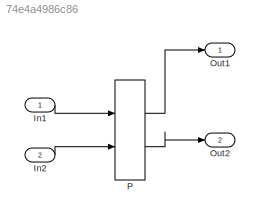
MODEL slx_74e4a4986c86
KIND model
CONFIG AbsTol = auto
CONFIG EnableMultiTasking = off
CONFIG FixedStep = auto
CONFIG MaxStep = auto
CONFIG MinStep = auto
CONFIG RelTol = 1e-3
CONFIG SampleTimeConstraint = Unconstrained
CONFIG Solver = FixedStepDiscrete
CONFIG SolverName = FixedStepDiscrete
CONFIG StartTime = 0.0
CONFIG StopTime = 10.0
BLOCK [Inport] In1
  IconDisplay = Port number
  PortDimensions = 1
BLOCK [Inport] In2
  IconDisplay = Port number
  Port = 2
BLOCK [Outport] Out1
  IconDisplay = Port number
BLOCK [Outport] Out2
  IconDisplay = Port number
  Port = 2
BLOCK [DiscreteIntegrator] P
  ICPrevOutput = DiscIntNeverNeededParam
  ICPrevScaledInput = DiscIntNeverNeededParam
  InitialCondition = 7
  InitialConditionSource = external
  IntegratorMethod = Integration: Backward Euler
  LimitOutput = on
  LowerSaturationLimit = 5
  OutDataTypeStr = Inherit: Inherit via back propagation
  Ports = [2, 2, 0, 0, 1]
  RndMeth = Convergent
  SampleTime = -1
  SaturateOnIntegerOverflow = on
  ShowSaturationPort = on
  ShowStatePort = on
  UpperSaturationLimit = 100
  gainval = 2.0
LINE In1:1 -> P:1
LINE In2:1 -> P:2
LINE P:1 -> Out1:1
LINE P:2 -> Out2:1
